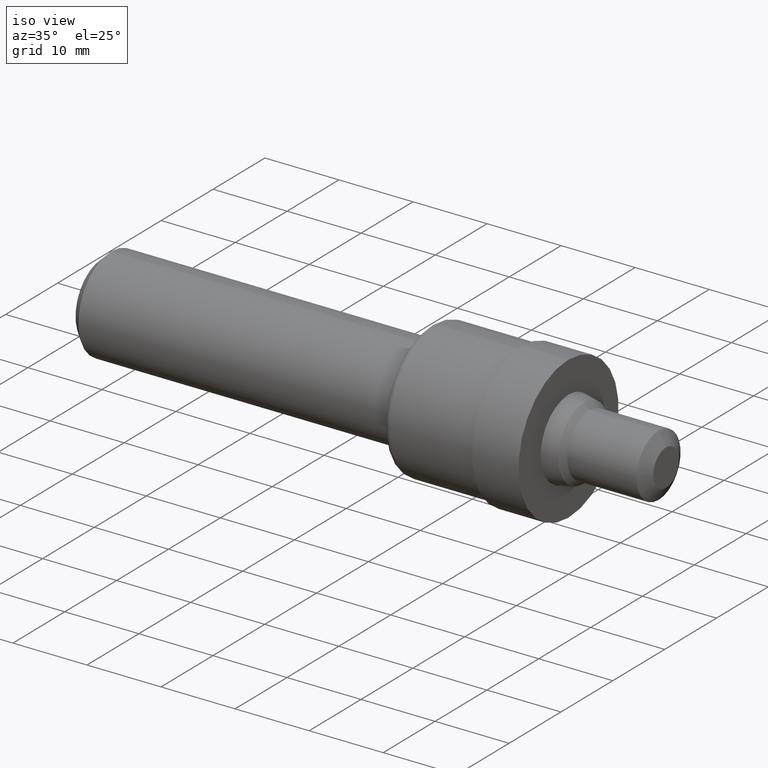
[diagram: clean part render]
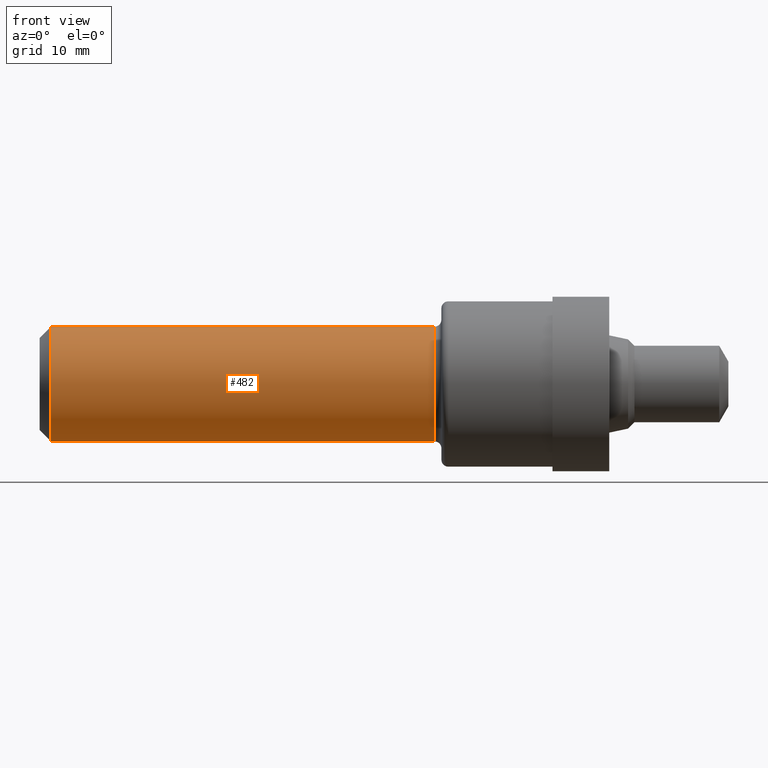
[diagram: tour spotlight — one face highlighted and labeled with its STEP entity id]
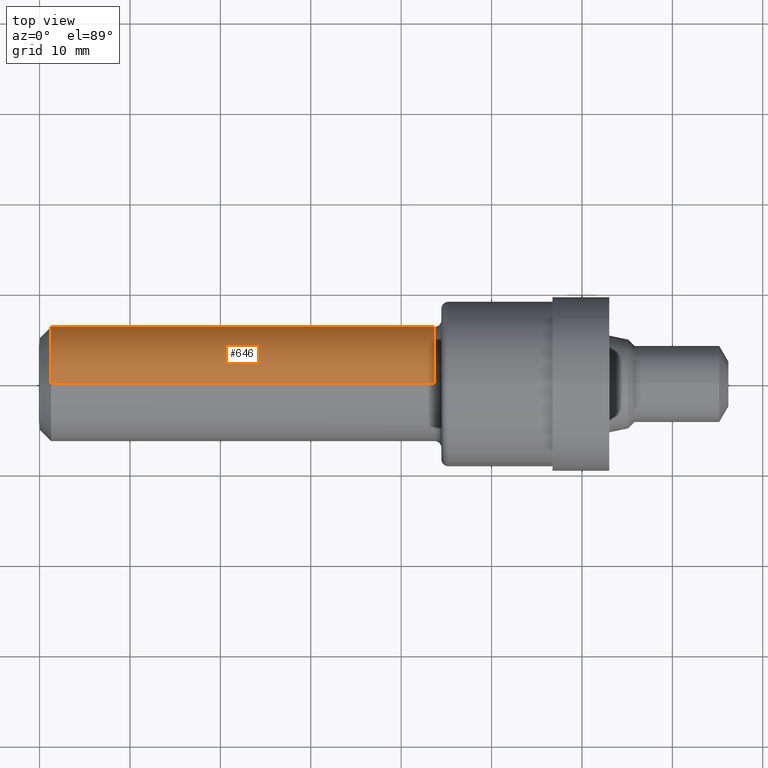
[diagram: tour spotlight — one face highlighted and labeled with its STEP entity id]
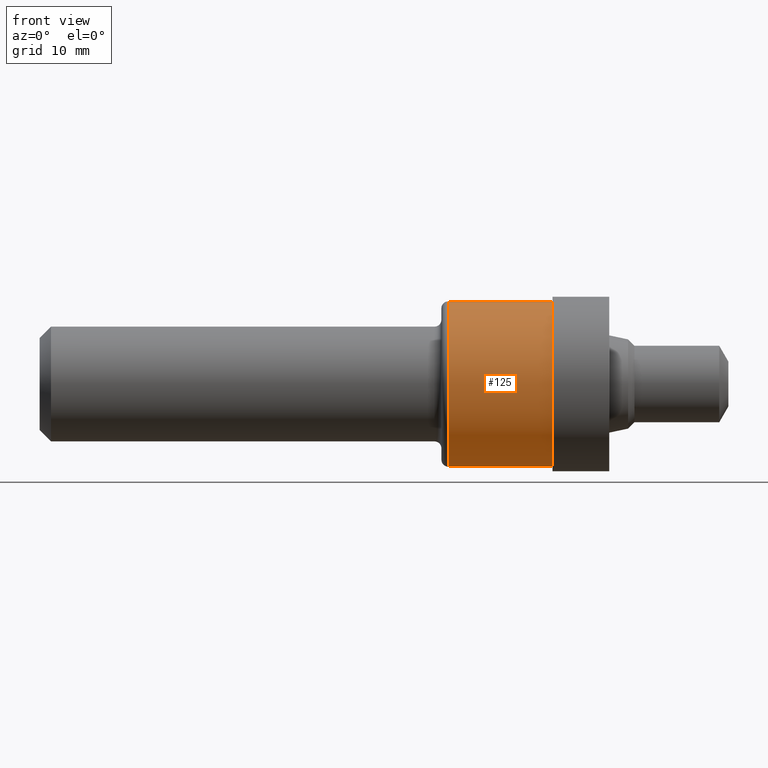
[diagram: tour spotlight — one face highlighted and labeled with its STEP entity id]
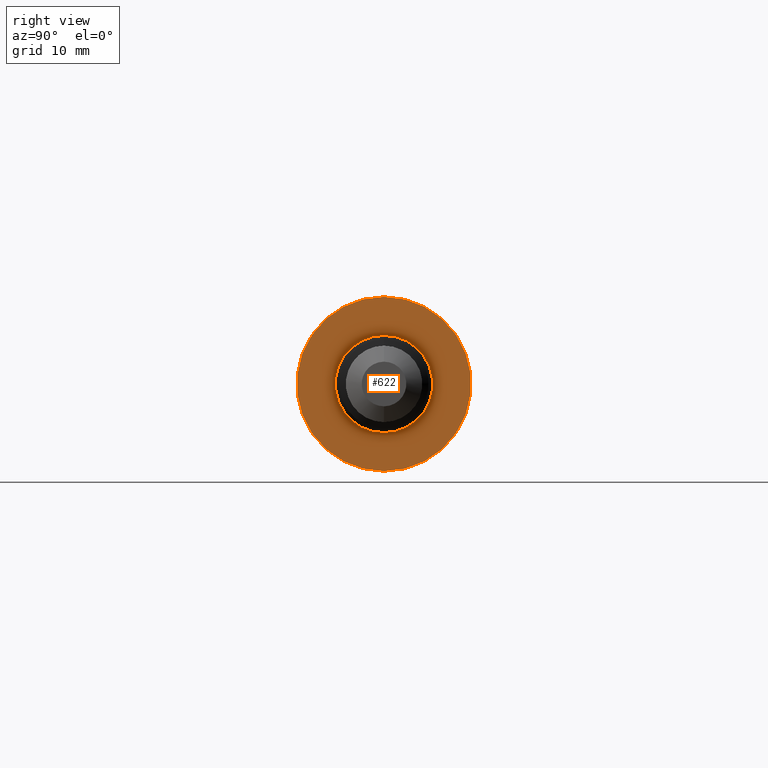
[diagram: tour spotlight — one face highlighted and labeled with its STEP entity id]
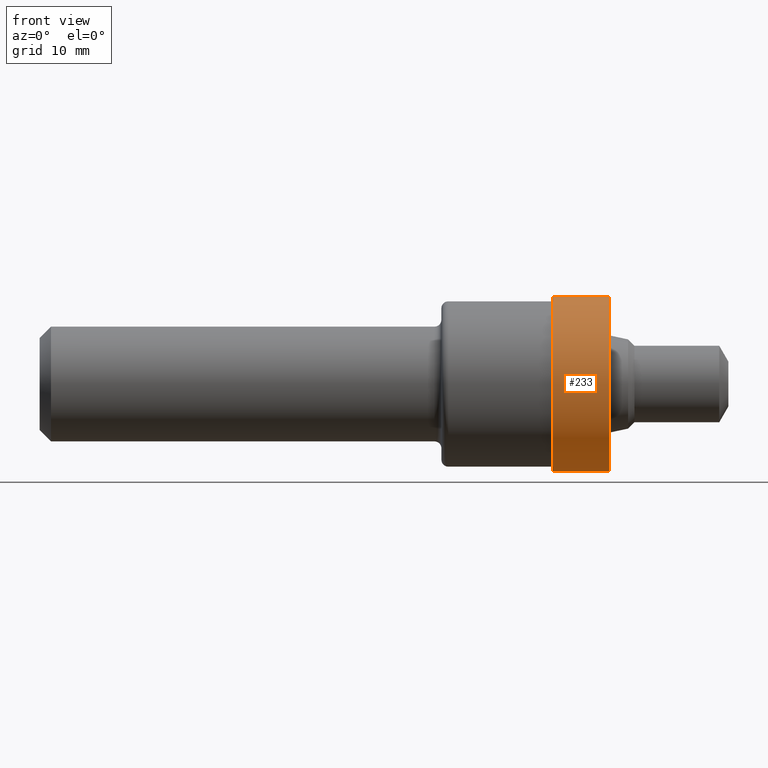
[diagram: tour spotlight — one face highlighted and labeled with its STEP entity id]
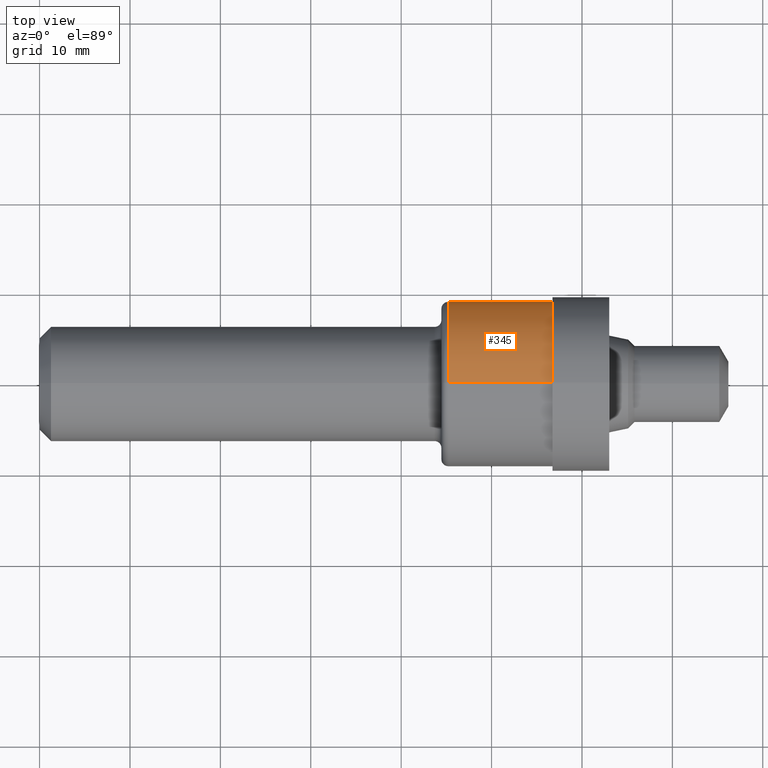
[diagram: tour spotlight — one face highlighted and labeled with its STEP entity id]
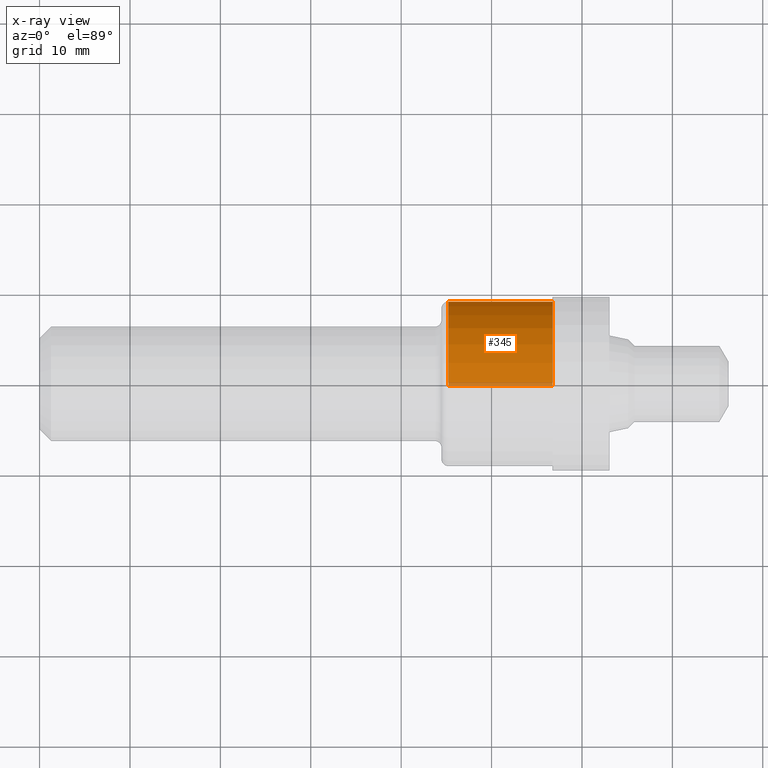
[diagram: x-ray of the same camera — body ghosted, this tour face saturated]
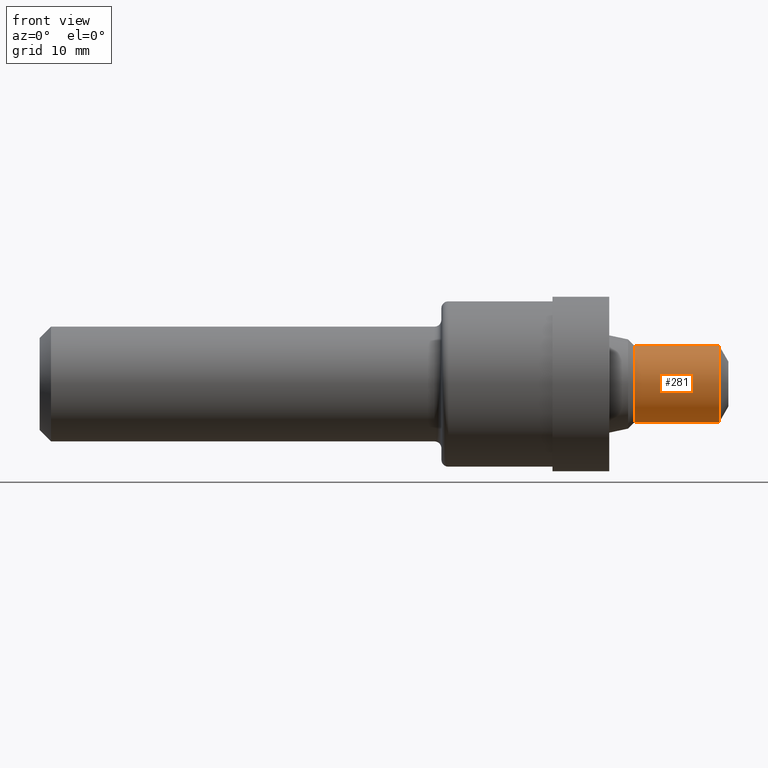
[diagram: tour spotlight — one face highlighted and labeled with its STEP entity id]
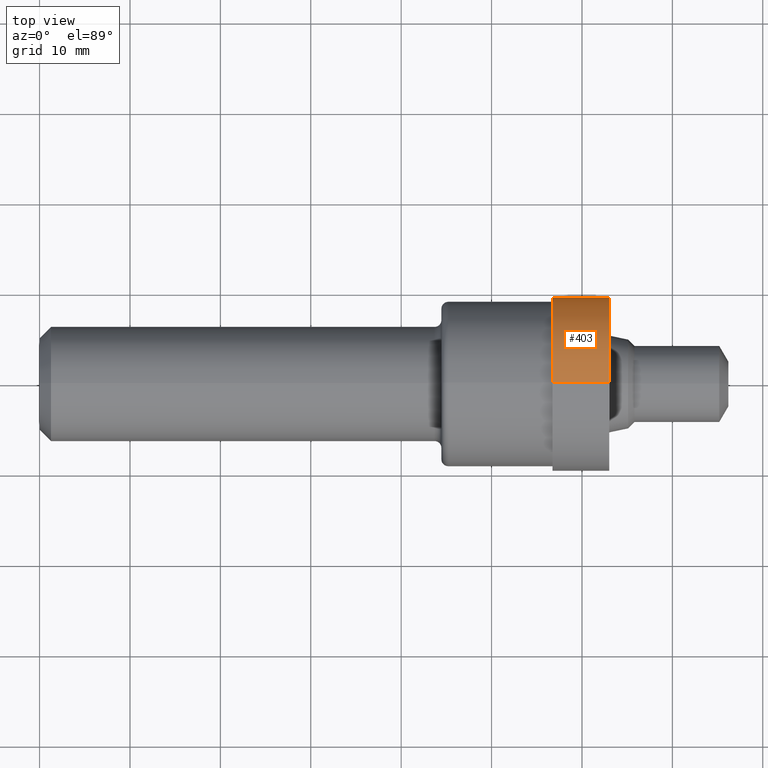
[diagram: tour spotlight — one face highlighted and labeled with its STEP entity id]
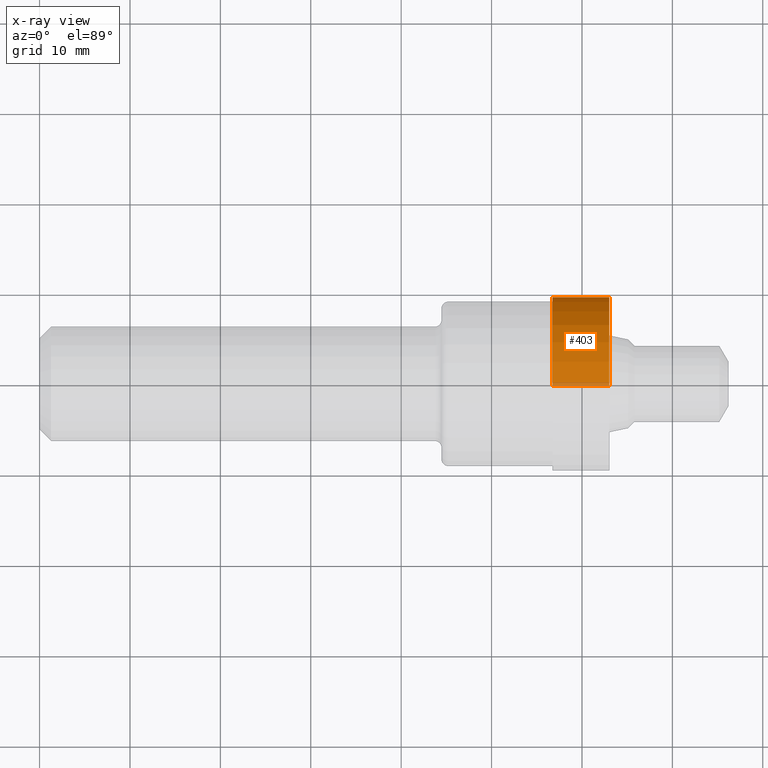
[diagram: x-ray of the same camera — body ghosted, this tour face saturated]
A machine part: a face-by-face anatomy tour. The part has 25 B-rep faces; the first image is the clean iso view, then the 8 largest visible faces are spotlighted one at a time (largest first), each with its STEP entity span.

Face 1 — front view, entity #482. In plain terms, the highlighted cylindrical surface (partial cylindrical patch) has radius 6.3462 mm, axis along (-1, -0, -0).
Definition (entity closure, byte-faithful):
#1 = VERTEX_POINT ( 'NONE', #440 ) ;
#9 = DIRECTION ( 'NONE',  ( -1.000000000000000000, -0.0000000000000000000, -0.0000000000000000000 ) ) ;
#41 = DIRECTION ( 'NONE',  ( 0.0000000000000000000, 0.0000000000000000000, 1.000000000000000000 ) ) ;
#43 = CARTESIAN_POINT ( 'NONE',  ( 1.720000000000000000, 0.0000000000000000000, 0.0000000000000000000 ) ) ;
#61 = VERTEX_POINT ( 'NONE', #509 ) ;
#70 = CARTESIAN_POINT ( 'NONE',  ( 0.05000000000000000300, 3.059780027669662500E-017, 0.2498500000000000400 ) ) ;
#71 = LINE ( 'NONE', #674, #315 ) ;
#83 = ORIENTED_EDGE ( 'NONE', *, *, #531, .T. ) ;
#85 = ORIENTED_EDGE ( 'NONE', *, *, #569, .F. ) ;
#97 = VECTOR ( 'NONE', #689, 39.37007874015748100 ) ;
#99 = DIRECTION ( 'NONE',  ( 0.0000000000000000000, 0.0000000000000000000, 1.000000000000000000 ) ) ;
#120 = ORIENTED_EDGE ( 'NONE', *, *, #373, .F. ) ;
#153 = CARTESIAN_POINT ( 'NONE',  ( 0.0000000000000000000, 0.0000000000000000000, 0.2498500000000002700 ) ) ;
#190 = DIRECTION ( 'NONE',  ( -1.000000000000000000, -0.0000000000000000000, -0.0000000000000000000 ) ) ;
#215 = DIRECTION ( 'NONE',  ( 0.0000000000000000000, 0.0000000000000000000, 1.000000000000000000 ) ) ;
#256 = ORIENTED_EDGE ( 'NONE', *, *, #469, .T. ) ;
#293 = CARTESIAN_POINT ( 'NONE',  ( 1.720000000000000000, 3.059780027669668100E-017, -0.2498500000000004900 ) ) ;
#315 = VECTOR ( 'NONE', #190, 39.37007874015748100 ) ;
#335 = AXIS2_PLACEMENT_3D ( 'NONE', #573, #684, #41 ) ;
#354 = VERTEX_POINT ( 'NONE', #293 ) ;
#358 = LINE ( 'NONE', #153, #97 ) ;
#373 = EDGE_CURVE ( 'NONE', #354, #1, #71, .T. ) ;
#417 = DIRECTION ( 'NONE',  ( -1.000000000000000000, -0.0000000000000000000, -0.0000000000000000000 ) ) ;
#431 = AXIS2_PLACEMENT_3D ( 'NONE', #43, #417, #99 ) ;
#440 = CARTESIAN_POINT ( 'NONE',  ( 0.05000000000000000300, 0.0000000000000000000, -0.2498500000000000400 ) ) ;
#469 = EDGE_CURVE ( 'NONE', #354, #61, #681, .T. ) ;
#482 = ADVANCED_FACE ( 'NONE', ( #537 ), #525, .T. ) ;
#483 = CIRCLE ( 'NONE', #630, 0.2498500000000000400 ) ;
#509 = CARTESIAN_POINT ( 'NONE',  ( 1.720000000000000000, 0.0000000000000000000, 0.2498500000000004900 ) ) ;
#525 = CYLINDRICAL_SURFACE ( 'NONE', #335, 0.2498500000000002700 ) ;
#531 = EDGE_CURVE ( 'NONE', #61, #581, #358, .T. ) ;
#537 = FACE_OUTER_BOUND ( 'NONE', #626, .T. ) ;
#549 = CARTESIAN_POINT ( 'NONE',  ( 0.05000000000000000300, 0.0000000000000000000, 0.0000000000000000000 ) ) ;
#569 = EDGE_CURVE ( 'NONE', #1, #581, #483, .T. ) ;
#573 = CARTESIAN_POINT ( 'NONE',  ( 0.0000000000000000000, 0.0000000000000000000, 0.0000000000000000000 ) ) ;
#581 = VERTEX_POINT ( 'NONE', #70 ) ;
#626 = EDGE_LOOP ( 'NONE', ( #120, #256, #83, #85 ) ) ;
#630 = AXIS2_PLACEMENT_3D ( 'NONE', #549, #9, #215 ) ;
#674 = CARTESIAN_POINT ( 'NONE',  ( 0.0000000000000000000, 3.059780027669665600E-017, -0.2498500000000002700 ) ) ;
#681 = CIRCLE ( 'NONE', #431, 0.2498500000000004900 ) ;
#684 = DIRECTION ( 'NONE',  ( -1.000000000000000000, -0.0000000000000000000, -0.0000000000000000000 ) ) ;
#689 = DIRECTION ( 'NONE',  ( -1.000000000000000000, -0.0000000000000000000, -0.0000000000000000000 ) ) ;

Face 2 — top view, entity #646. In plain terms, the highlighted cylindrical surface (partial cylindrical patch) has radius 6.3462 mm, axis along (-1, -0, -0).
Definition (entity closure, byte-faithful):
#1 = VERTEX_POINT ( 'NONE', #440 ) ;
#25 = DIRECTION ( 'NONE',  ( 0.0000000000000000000, 0.0000000000000000000, 1.000000000000000000 ) ) ;
#61 = VERTEX_POINT ( 'NONE', #509 ) ;
#70 = CARTESIAN_POINT ( 'NONE',  ( 0.05000000000000000300, 3.059780027669662500E-017, 0.2498500000000000400 ) ) ;
#71 = LINE ( 'NONE', #674, #315 ) ;
#97 = VECTOR ( 'NONE', #689, 39.37007874015748100 ) ;
#105 = ORIENTED_EDGE ( 'NONE', *, *, #531, .F. ) ;
#126 = CIRCLE ( 'NONE', #477, 0.2498500000000000400 ) ;
#148 = DIRECTION ( 'NONE',  ( -1.000000000000000000, -0.0000000000000000000, -0.0000000000000000000 ) ) ;
#149 = FACE_OUTER_BOUND ( 'NONE', #245, .T. ) ;
#153 = CARTESIAN_POINT ( 'NONE',  ( 0.0000000000000000000, 0.0000000000000000000, 0.2498500000000002700 ) ) ;
#188 = ORIENTED_EDGE ( 'NONE', *, *, #373, .T. ) ;
#190 = DIRECTION ( 'NONE',  ( -1.000000000000000000, -0.0000000000000000000, -0.0000000000000000000 ) ) ;
#241 = CIRCLE ( 'NONE', #272, 0.2498500000000004900 ) ;
#245 = EDGE_LOOP ( 'NONE', ( #446, #188, #523, #105 ) ) ;
#271 = DIRECTION ( 'NONE',  ( -1.000000000000000000, -0.0000000000000000000, -0.0000000000000000000 ) ) ;
#272 = AXIS2_PLACEMENT_3D ( 'NONE', #671, #344, #25 ) ;
#293 = CARTESIAN_POINT ( 'NONE',  ( 1.720000000000000000, 3.059780027669668100E-017, -0.2498500000000004900 ) ) ;
#306 = EDGE_CURVE ( 'NONE', #61, #354, #241, .T. ) ;
#315 = VECTOR ( 'NONE', #190, 39.37007874015748100 ) ;
#344 = DIRECTION ( 'NONE',  ( -1.000000000000000000, -0.0000000000000000000, -0.0000000000000000000 ) ) ;
#354 = VERTEX_POINT ( 'NONE', #293 ) ;
#358 = LINE ( 'NONE', #153, #97 ) ;
#373 = EDGE_CURVE ( 'NONE', #354, #1, #71, .T. ) ;
#380 = CARTESIAN_POINT ( 'NONE',  ( 0.0000000000000000000, 0.0000000000000000000, 0.0000000000000000000 ) ) ;
#406 = CYLINDRICAL_SURFACE ( 'NONE', #512, 0.2498500000000002700 ) ;
#440 = CARTESIAN_POINT ( 'NONE',  ( 0.05000000000000000300, 0.0000000000000000000, -0.2498500000000000400 ) ) ;
#446 = ORIENTED_EDGE ( 'NONE', *, *, #306, .T. ) ;
#458 = EDGE_CURVE ( 'NONE', #581, #1, #126, .T. ) ;
#470 = CARTESIAN_POINT ( 'NONE',  ( 0.05000000000000000300, 0.0000000000000000000, 0.0000000000000000000 ) ) ;
#477 = AXIS2_PLACEMENT_3D ( 'NONE', #470, #148, #526 ) ;
#509 = CARTESIAN_POINT ( 'NONE',  ( 1.720000000000000000, 0.0000000000000000000, 0.2498500000000004900 ) ) ;
#512 = AXIS2_PLACEMENT_3D ( 'NONE', #380, #271, #597 ) ;
#523 = ORIENTED_EDGE ( 'NONE', *, *, #458, .F. ) ;
#526 = DIRECTION ( 'NONE',  ( 0.0000000000000000000, 0.0000000000000000000, 1.000000000000000000 ) ) ;
#531 = EDGE_CURVE ( 'NONE', #61, #581, #358, .T. ) ;
#581 = VERTEX_POINT ( 'NONE', #70 ) ;
#597 = DIRECTION ( 'NONE',  ( 0.0000000000000000000, 0.0000000000000000000, 1.000000000000000000 ) ) ;
#646 = ADVANCED_FACE ( 'NONE', ( #149 ), #406, .T. ) ;
#671 = CARTESIAN_POINT ( 'NONE',  ( 1.720000000000000000, 0.0000000000000000000, 0.0000000000000000000 ) ) ;
#674 = CARTESIAN_POINT ( 'NONE',  ( 0.0000000000000000000, 3.059780027669665600E-017, -0.2498500000000002700 ) ) ;
#689 = DIRECTION ( 'NONE',  ( -1.000000000000000000, -0.0000000000000000000, -0.0000000000000000000 ) ) ;

Face 3 — front view, entity #125. In plain terms, the highlighted cylindrical surface (partial cylindrical patch) has radius 9.144 mm, axis along (-1, -0, -0).
Definition (entity closure, byte-faithful):
#2 = EDGE_LOOP ( 'NONE', ( #675, #311, #480, #378 ) ) ;
#17 = DIRECTION ( 'NONE',  ( -1.000000000000000000, -0.0000000000000000000, -0.0000000000000000000 ) ) ;
#24 = EDGE_CURVE ( 'NONE', #384, #535, #683, .T. ) ;
#54 = EDGE_CURVE ( 'NONE', #384, #317, #249, .T. ) ;
#95 = EDGE_CURVE ( 'NONE', #317, #322, #644, .T. ) ;
#125 = ADVANCED_FACE ( 'NONE', ( #540 ), #632, .T. ) ;
#127 = DIRECTION ( 'NONE',  ( 0.0000000000000000000, 0.0000000000000000000, 1.000000000000000000 ) ) ;
#217 = CARTESIAN_POINT ( 'NONE',  ( 0.0000000000000000000, 4.408728476930471600E-017, -0.3599999999999999900 ) ) ;
#226 = CARTESIAN_POINT ( 'NONE',  ( 1.779999999999999800, 0.0000000000000000000, 0.0000000000000000000 ) ) ;
#234 = AXIS2_PLACEMENT_3D ( 'NONE', #395, #17, #127 ) ;
#240 = CARTESIAN_POINT ( 'NONE',  ( 2.234000000000000400, 4.408728476930471600E-017, -0.3599999999999999900 ) ) ;
#249 = LINE ( 'NONE', #217, #527 ) ;
#257 = EDGE_CURVE ( 'NONE', #535, #322, #454, .T. ) ;
#268 = DIRECTION ( 'NONE',  ( 0.0000000000000000000, 0.0000000000000000000, 1.000000000000000000 ) ) ;
#311 = ORIENTED_EDGE ( 'NONE', *, *, #24, .T. ) ;
#317 = VERTEX_POINT ( 'NONE', #615 ) ;
#322 = VERTEX_POINT ( 'NONE', #402 ) ;
#331 = DIRECTION ( 'NONE',  ( 0.0000000000000000000, 0.0000000000000000000, 1.000000000000000000 ) ) ;
#378 = ORIENTED_EDGE ( 'NONE', *, *, #95, .F. ) ;
#384 = VERTEX_POINT ( 'NONE', #240 ) ;
#395 = CARTESIAN_POINT ( 'NONE',  ( 2.234000000000000400, 0.0000000000000000000, 0.0000000000000000000 ) ) ;
#402 = CARTESIAN_POINT ( 'NONE',  ( 1.779999999999999800, 0.0000000000000000000, 0.3599999999999999300 ) ) ;
#420 = AXIS2_PLACEMENT_3D ( 'NONE', #226, #493, #268 ) ;
#454 = LINE ( 'NONE', #606, #578 ) ;
#480 = ORIENTED_EDGE ( 'NONE', *, *, #257, .T. ) ;
#493 = DIRECTION ( 'NONE',  ( -1.000000000000000000, -0.0000000000000000000, -0.0000000000000000000 ) ) ;
#500 = DIRECTION ( 'NONE',  ( -1.000000000000000000, -0.0000000000000000000, -0.0000000000000000000 ) ) ;
#527 = VECTOR ( 'NONE', #598, 39.37007874015748100 ) ;
#535 = VERTEX_POINT ( 'NONE', #580 ) ;
#540 = FACE_OUTER_BOUND ( 'NONE', #2, .T. ) ;
#550 = CARTESIAN_POINT ( 'NONE',  ( 0.0000000000000000000, 0.0000000000000000000, 0.0000000000000000000 ) ) ;
#578 = VECTOR ( 'NONE', #500, 39.37007874015748100 ) ;
#580 = CARTESIAN_POINT ( 'NONE',  ( 2.234000000000000400, 0.0000000000000000000, 0.3599999999999999900 ) ) ;
#582 = AXIS2_PLACEMENT_3D ( 'NONE', #550, #659, #331 ) ;
#598 = DIRECTION ( 'NONE',  ( -1.000000000000000000, -0.0000000000000000000, -0.0000000000000000000 ) ) ;
#606 = CARTESIAN_POINT ( 'NONE',  ( 0.0000000000000000000, 0.0000000000000000000, 0.3599999999999999900 ) ) ;
#615 = CARTESIAN_POINT ( 'NONE',  ( 1.779999999999999800, 4.408728476930471000E-017, -0.3599999999999999300 ) ) ;
#632 = CYLINDRICAL_SURFACE ( 'NONE', #582, 0.3599999999999999900 ) ;
#644 = CIRCLE ( 'NONE', #420, 0.3599999999999999300 ) ;
#659 = DIRECTION ( 'NONE',  ( -1.000000000000000000, -0.0000000000000000000, -0.0000000000000000000 ) ) ;
#675 = ORIENTED_EDGE ( 'NONE', *, *, #54, .F. ) ;
#683 = CIRCLE ( 'NONE', #234, 0.3599999999999999900 ) ;

Face 4 — right view, entity #622. In plain terms, the highlighted planar face has unit normal (-1, 0, -0).
Definition (entity closure, byte-faithful):
#3 = EDGE_LOOP ( 'NONE', ( #428, #34 ) ) ;
#27 = FACE_BOUND ( 'NONE', #3, .T. ) ;
#34 = ORIENTED_EDGE ( 'NONE', *, *, #316, .T. ) ;
#48 = AXIS2_PLACEMENT_3D ( 'NONE', #235, #619, #290 ) ;
#52 = CIRCLE ( 'NONE', #253, 0.3799999999999999500 ) ;
#72 = DIRECTION ( 'NONE',  ( -1.000000000000000000, -0.0000000000000000000, -0.0000000000000000000 ) ) ;
#134 = CARTESIAN_POINT ( 'NONE',  ( 2.481000000000000300, 0.0000000000000000000, 0.2117499999999999900 ) ) ;
#136 = PLANE ( 'NONE',  #399 ) ;
#166 = DIRECTION ( 'NONE',  ( -0.0000000000000000000, 0.0000000000000000000, 1.000000000000000000 ) ) ;
#175 = ORIENTED_EDGE ( 'NONE', *, *, #246, .F. ) ;
#186 = EDGE_LOOP ( 'NONE', ( #541, #175 ) ) ;
#201 = VERTEX_POINT ( 'NONE', #134 ) ;
#235 = CARTESIAN_POINT ( 'NONE',  ( 2.481000000000000300, 0.0000000000000000000, 0.0000000000000000000 ) ) ;
#237 = CARTESIAN_POINT ( 'NONE',  ( 2.481000000000000300, 0.0000000000000000000, 0.0000000000000000000 ) ) ;
#244 = CARTESIAN_POINT ( 'NONE',  ( 2.481000000000000300, 0.0000000000000000000, 0.3799999999999999500 ) ) ;
#246 = EDGE_CURVE ( 'NONE', #351, #401, #320, .T. ) ;
#253 = AXIS2_PLACEMENT_3D ( 'NONE', #237, #624, #295 ) ;
#261 = CIRCLE ( 'NONE', #298, 0.2117499999999999900 ) ;
#273 = DIRECTION ( 'NONE',  ( -1.000000000000000000, 0.0000000000000000000, -0.0000000000000000000 ) ) ;
#290 = DIRECTION ( 'NONE',  ( 0.0000000000000000000, 0.0000000000000000000, 1.000000000000000000 ) ) ;
#295 = DIRECTION ( 'NONE',  ( 0.0000000000000000000, 0.0000000000000000000, 1.000000000000000000 ) ) ;
#298 = AXIS2_PLACEMENT_3D ( 'NONE', #302, #687, #362 ) ;
#302 = CARTESIAN_POINT ( 'NONE',  ( 2.481000000000000300, 0.0000000000000000000, 0.0000000000000000000 ) ) ;
#316 = EDGE_CURVE ( 'NONE', #640, #201, #520, .T. ) ;
#320 = CIRCLE ( 'NONE', #623, 0.3799999999999999500 ) ;
#330 = CARTESIAN_POINT ( 'NONE',  ( 2.481000000000000300, 0.3799999999999999500, 0.0000000000000000000 ) ) ;
#351 = VERTEX_POINT ( 'NONE', #461 ) ;
#353 = EDGE_CURVE ( 'NONE', #401, #351, #52, .T. ) ;
#362 = DIRECTION ( 'NONE',  ( 0.0000000000000000000, 0.0000000000000000000, 1.000000000000000000 ) ) ;
#387 = DIRECTION ( 'NONE',  ( 0.0000000000000000000, 0.0000000000000000000, 1.000000000000000000 ) ) ;
#399 = AXIS2_PLACEMENT_3D ( 'NONE', #330, #273, #166 ) ;
#401 = VERTEX_POINT ( 'NONE', #244 ) ;
#428 = ORIENTED_EDGE ( 'NONE', *, *, #490, .T. ) ;
#442 = CARTESIAN_POINT ( 'NONE',  ( 2.481000000000000300, 0.0000000000000000000, 0.0000000000000000000 ) ) ;
#451 = FACE_OUTER_BOUND ( 'NONE', #186, .T. ) ;
#461 = CARTESIAN_POINT ( 'NONE',  ( 2.481000000000000300, 4.653657836759941700E-017, -0.3799999999999999500 ) ) ;
#490 = EDGE_CURVE ( 'NONE', #201, #640, #261, .T. ) ;
#520 = CIRCLE ( 'NONE', #48, 0.2117499999999999900 ) ;
#541 = ORIENTED_EDGE ( 'NONE', *, *, #353, .F. ) ;
#619 = DIRECTION ( 'NONE',  ( -1.000000000000000000, -0.0000000000000000000, -0.0000000000000000000 ) ) ;
#622 = ADVANCED_FACE ( 'NONE', ( #451, #27 ), #136, .F. ) ;
#623 = AXIS2_PLACEMENT_3D ( 'NONE', #442, #72, #387 ) ;
#624 = DIRECTION ( 'NONE',  ( -1.000000000000000000, -0.0000000000000000000, -0.0000000000000000000 ) ) ;
#640 = VERTEX_POINT ( 'NONE', #652 ) ;
#652 = CARTESIAN_POINT ( 'NONE',  ( 2.481000000000000300, 2.593189597194520500E-017, -0.2117499999999999900 ) ) ;
#687 = DIRECTION ( 'NONE',  ( -1.000000000000000000, -0.0000000000000000000, -0.0000000000000000000 ) ) ;

Face 5 — front view, entity #233. In plain terms, the highlighted cylindrical surface (partial cylindrical patch) has radius 9.652 mm, axis along (-1, -0, -0).
Definition (entity closure, byte-faithful):
#11 = CARTESIAN_POINT ( 'NONE',  ( 0.0000000000000000000, 0.0000000000000000000, 0.0000000000000000000 ) ) ;
#44 = VECTOR ( 'NONE', #62, 39.37007874015748100 ) ;
#53 = VERTEX_POINT ( 'NONE', #177 ) ;
#62 = DIRECTION ( 'NONE',  ( -1.000000000000000000, -0.0000000000000000000, -0.0000000000000000000 ) ) ;
#65 = AXIS2_PLACEMENT_3D ( 'NONE', #11, #80, #430 ) ;
#72 = DIRECTION ( 'NONE',  ( -1.000000000000000000, -0.0000000000000000000, -0.0000000000000000000 ) ) ;
#80 = DIRECTION ( 'NONE',  ( -1.000000000000000000, -0.0000000000000000000, -0.0000000000000000000 ) ) ;
#96 = CARTESIAN_POINT ( 'NONE',  ( 0.0000000000000000000, 4.653657836759941700E-017, -0.3799999999999999500 ) ) ;
#98 = CIRCLE ( 'NONE', #489, 0.3799999999999999500 ) ;
#111 = EDGE_CURVE ( 'NONE', #460, #53, #98, .T. ) ;
#115 = EDGE_LOOP ( 'NONE', ( #435, #260, #590, #468 ) ) ;
#161 = CYLINDRICAL_SURFACE ( 'NONE', #65, 0.3799999999999999500 ) ;
#177 = CARTESIAN_POINT ( 'NONE',  ( 2.234000000000000400, 0.0000000000000000000, 0.3799999999999999500 ) ) ;
#233 = ADVANCED_FACE ( 'NONE', ( #343 ), #161, .T. ) ;
#244 = CARTESIAN_POINT ( 'NONE',  ( 2.481000000000000300, 0.0000000000000000000, 0.3799999999999999500 ) ) ;
#246 = EDGE_CURVE ( 'NONE', #351, #401, #320, .T. ) ;
#250 = DIRECTION ( 'NONE',  ( -1.000000000000000000, -0.0000000000000000000, -0.0000000000000000000 ) ) ;
#260 = ORIENTED_EDGE ( 'NONE', *, *, #246, .T. ) ;
#320 = CIRCLE ( 'NONE', #623, 0.3799999999999999500 ) ;
#343 = FACE_OUTER_BOUND ( 'NONE', #115, .T. ) ;
#351 = VERTEX_POINT ( 'NONE', #461 ) ;
#387 = DIRECTION ( 'NONE',  ( 0.0000000000000000000, 0.0000000000000000000, 1.000000000000000000 ) ) ;
#393 = VECTOR ( 'NONE', #250, 39.37007874015748100 ) ;
#401 = VERTEX_POINT ( 'NONE', #244 ) ;
#413 = LINE ( 'NONE', #96, #393 ) ;
#416 = CARTESIAN_POINT ( 'NONE',  ( 2.234000000000000400, 4.653657836759941700E-017, -0.3799999999999999500 ) ) ;
#430 = DIRECTION ( 'NONE',  ( 0.0000000000000000000, 0.0000000000000000000, 1.000000000000000000 ) ) ;
#434 = DIRECTION ( 'NONE',  ( -1.000000000000000000, -0.0000000000000000000, -0.0000000000000000000 ) ) ;
#435 = ORIENTED_EDGE ( 'NONE', *, *, #465, .F. ) ;
#442 = CARTESIAN_POINT ( 'NONE',  ( 2.481000000000000300, 0.0000000000000000000, 0.0000000000000000000 ) ) ;
#460 = VERTEX_POINT ( 'NONE', #416 ) ;
#461 = CARTESIAN_POINT ( 'NONE',  ( 2.481000000000000300, 4.653657836759941700E-017, -0.3799999999999999500 ) ) ;
#465 = EDGE_CURVE ( 'NONE', #351, #460, #413, .T. ) ;
#468 = ORIENTED_EDGE ( 'NONE', *, *, #111, .F. ) ;
#471 = LINE ( 'NONE', #558, #44 ) ;
#489 = AXIS2_PLACEMENT_3D ( 'NONE', #601, #434, #496 ) ;
#496 = DIRECTION ( 'NONE',  ( 0.0000000000000000000, 0.0000000000000000000, 1.000000000000000000 ) ) ;
#558 = CARTESIAN_POINT ( 'NONE',  ( 0.0000000000000000000, 0.0000000000000000000, 0.3799999999999999500 ) ) ;
#590 = ORIENTED_EDGE ( 'NONE', *, *, #605, .T. ) ;
#601 = CARTESIAN_POINT ( 'NONE',  ( 2.234000000000000400, 0.0000000000000000000, 0.0000000000000000000 ) ) ;
#605 = EDGE_CURVE ( 'NONE', #401, #53, #471, .T. ) ;
#623 = AXIS2_PLACEMENT_3D ( 'NONE', #442, #72, #387 ) ;

Face 6 — top view, entity #345. An x-ray twin of the same camera follows (body ghosted, this face saturated) — the face is partly hidden behind the body. In plain terms, the highlighted cylindrical surface (partial cylindrical patch) has radius 9.144 mm, axis along (-1, -0, -0).
Definition (entity closure, byte-faithful):
#54 = EDGE_CURVE ( 'NONE', #384, #317, #249, .T. ) ;
#78 = DIRECTION ( 'NONE',  ( 0.0000000000000000000, 0.0000000000000000000, 1.000000000000000000 ) ) ;
#140 = DIRECTION ( 'NONE',  ( -1.000000000000000000, -0.0000000000000000000, -0.0000000000000000000 ) ) ;
#203 = EDGE_LOOP ( 'NONE', ( #259, #368, #650, #359 ) ) ;
#217 = CARTESIAN_POINT ( 'NONE',  ( 0.0000000000000000000, 4.408728476930471600E-017, -0.3599999999999999900 ) ) ;
#240 = CARTESIAN_POINT ( 'NONE',  ( 2.234000000000000400, 4.408728476930471600E-017, -0.3599999999999999900 ) ) ;
#249 = LINE ( 'NONE', #217, #527 ) ;
#254 = CIRCLE ( 'NONE', #542, 0.3599999999999999900 ) ;
#257 = EDGE_CURVE ( 'NONE', #535, #322, #454, .T. ) ;
#259 = ORIENTED_EDGE ( 'NONE', *, *, #682, .T. ) ;
#282 = CARTESIAN_POINT ( 'NONE',  ( 2.234000000000000400, 0.0000000000000000000, 0.0000000000000000000 ) ) ;
#289 = CARTESIAN_POINT ( 'NONE',  ( 1.779999999999999800, 0.0000000000000000000, 0.0000000000000000000 ) ) ;
#292 = AXIS2_PLACEMENT_3D ( 'NONE', #563, #140, #457 ) ;
#317 = VERTEX_POINT ( 'NONE', #615 ) ;
#322 = VERTEX_POINT ( 'NONE', #402 ) ;
#333 = CYLINDRICAL_SURFACE ( 'NONE', #292, 0.3599999999999999900 ) ;
#342 = DIRECTION ( 'NONE',  ( 0.0000000000000000000, 0.0000000000000000000, 1.000000000000000000 ) ) ;
#345 = ADVANCED_FACE ( 'NONE', ( #637 ), #333, .T. ) ;
#359 = ORIENTED_EDGE ( 'NONE', *, *, #257, .F. ) ;
#368 = ORIENTED_EDGE ( 'NONE', *, *, #54, .T. ) ;
#384 = VERTEX_POINT ( 'NONE', #240 ) ;
#402 = CARTESIAN_POINT ( 'NONE',  ( 1.779999999999999800, 0.0000000000000000000, 0.3599999999999999300 ) ) ;
#454 = LINE ( 'NONE', #606, #578 ) ;
#457 = DIRECTION ( 'NONE',  ( 0.0000000000000000000, 0.0000000000000000000, 1.000000000000000000 ) ) ;
#500 = DIRECTION ( 'NONE',  ( -1.000000000000000000, -0.0000000000000000000, -0.0000000000000000000 ) ) ;
#527 = VECTOR ( 'NONE', #598, 39.37007874015748100 ) ;
#535 = VERTEX_POINT ( 'NONE', #580 ) ;
#542 = AXIS2_PLACEMENT_3D ( 'NONE', #282, #667, #78 ) ;
#544 = CIRCLE ( 'NONE', #575, 0.3599999999999999300 ) ;
#563 = CARTESIAN_POINT ( 'NONE',  ( 0.0000000000000000000, 0.0000000000000000000, 0.0000000000000000000 ) ) ;
#575 = AXIS2_PLACEMENT_3D ( 'NONE', #289, #670, #342 ) ;
#578 = VECTOR ( 'NONE', #500, 39.37007874015748100 ) ;
#580 = CARTESIAN_POINT ( 'NONE',  ( 2.234000000000000400, 0.0000000000000000000, 0.3599999999999999900 ) ) ;
#598 = DIRECTION ( 'NONE',  ( -1.000000000000000000, -0.0000000000000000000, -0.0000000000000000000 ) ) ;
#606 = CARTESIAN_POINT ( 'NONE',  ( 0.0000000000000000000, 0.0000000000000000000, 0.3599999999999999900 ) ) ;
#615 = CARTESIAN_POINT ( 'NONE',  ( 1.779999999999999800, 4.408728476930471000E-017, -0.3599999999999999300 ) ) ;
#637 = FACE_OUTER_BOUND ( 'NONE', #203, .T. ) ;
#650 = ORIENTED_EDGE ( 'NONE', *, *, #686, .F. ) ;
#667 = DIRECTION ( 'NONE',  ( -1.000000000000000000, -0.0000000000000000000, -0.0000000000000000000 ) ) ;
#670 = DIRECTION ( 'NONE',  ( -1.000000000000000000, -0.0000000000000000000, -0.0000000000000000000 ) ) ;
#682 = EDGE_CURVE ( 'NONE', #535, #384, #254, .T. ) ;
#686 = EDGE_CURVE ( 'NONE', #322, #317, #544, .T. ) ;

Face 7 — front view, entity #281. In plain terms, the highlighted cylindrical surface (partial cylindrical patch) has radius 4.2291 mm, axis along (-1, -0, -0).
Definition (entity closure, byte-faithful):
#4 = ORIENTED_EDGE ( 'NONE', *, *, #609, .T. ) ;
#5 = ORIENTED_EDGE ( 'NONE', *, *, #504, .F. ) ;
#15 = DIRECTION ( 'NONE',  ( -1.000000000000000000, -0.0000000000000000000, -0.0000000000000000000 ) ) ;
#26 = EDGE_CURVE ( 'NONE', #600, #108, #129, .T. ) ;
#42 = AXIS2_PLACEMENT_3D ( 'NONE', #603, #224, #391 ) ;
#63 = CARTESIAN_POINT ( 'NONE',  ( 2.590820361943058100, 2.209387506603778400E-017, -0.1665000000000000100 ) ) ;
#68 = ORIENTED_EDGE ( 'NONE', *, *, #26, .T. ) ;
#75 = CARTESIAN_POINT ( 'NONE',  ( 0.0000000000000000000, 0.0000000000000000000, 0.0000000000000000000 ) ) ;
#76 = CARTESIAN_POINT ( 'NONE',  ( 0.0000000000000000000, 0.0000000000000000000, 0.1665000000000000100 ) ) ;
#93 = DIRECTION ( 'NONE',  ( -1.000000000000000000, -0.0000000000000000000, -0.0000000000000000000 ) ) ;
#108 = VERTEX_POINT ( 'NONE', #555 ) ;
#129 = LINE ( 'NONE', #76, #396 ) ;
#223 = VERTEX_POINT ( 'NONE', #63 ) ;
#224 = DIRECTION ( 'NONE',  ( -1.000000000000000000, -0.0000000000000000000, -0.0000000000000000000 ) ) ;
#239 = AXIS2_PLACEMENT_3D ( 'NONE', #75, #15, #337 ) ;
#252 = DIRECTION ( 'NONE',  ( -1.000000000000000000, -0.0000000000000000000, -0.0000000000000000000 ) ) ;
#281 = ADVANCED_FACE ( 'NONE', ( #502 ), #654, .T. ) ;
#287 = DIRECTION ( 'NONE',  ( -1.000000000000000000, -0.0000000000000000000, -0.0000000000000000000 ) ) ;
#319 = CIRCLE ( 'NONE', #42, 0.1665000000000000100 ) ;
#327 = CARTESIAN_POINT ( 'NONE',  ( 2.960000000000000000, 0.0000000000000000000, 0.1665000000000000100 ) ) ;
#337 = DIRECTION ( 'NONE',  ( 0.0000000000000000000, 0.0000000000000000000, 1.000000000000000000 ) ) ;
#350 = EDGE_LOOP ( 'NONE', ( #566, #4, #68, #5 ) ) ;
#365 = VERTEX_POINT ( 'NONE', #565 ) ;
#391 = DIRECTION ( 'NONE',  ( 0.0000000000000000000, 0.0000000000000000000, 1.000000000000000000 ) ) ;
#396 = VECTOR ( 'NONE', #287, 39.37007874015748100 ) ;
#414 = AXIS2_PLACEMENT_3D ( 'NONE', #577, #252, #633 ) ;
#426 = EDGE_CURVE ( 'NONE', #365, #223, #693, .T. ) ;
#466 = CARTESIAN_POINT ( 'NONE',  ( 0.0000000000000000000, 2.039036920580343200E-017, -0.1665000000000000100 ) ) ;
#502 = FACE_OUTER_BOUND ( 'NONE', #350, .T. ) ;
#504 = EDGE_CURVE ( 'NONE', #223, #108, #664, .T. ) ;
#553 = VECTOR ( 'NONE', #93, 39.37007874015748100 ) ;
#555 = CARTESIAN_POINT ( 'NONE',  ( 2.590820361943058100, 0.0000000000000000000, 0.1665000000000000100 ) ) ;
#565 = CARTESIAN_POINT ( 'NONE',  ( 2.960000000000000000, 2.039036920580343200E-017, -0.1665000000000000100 ) ) ;
#566 = ORIENTED_EDGE ( 'NONE', *, *, #426, .F. ) ;
#577 = CARTESIAN_POINT ( 'NONE',  ( 2.590820361943058100, 0.0000000000000000000, 0.0000000000000000000 ) ) ;
#600 = VERTEX_POINT ( 'NONE', #327 ) ;
#603 = CARTESIAN_POINT ( 'NONE',  ( 2.960000000000000000, 0.0000000000000000000, 0.0000000000000000000 ) ) ;
#609 = EDGE_CURVE ( 'NONE', #365, #600, #319, .T. ) ;
#633 = DIRECTION ( 'NONE',  ( 0.0000000000000000000, 0.0000000000000000000, 1.000000000000000000 ) ) ;
#654 = CYLINDRICAL_SURFACE ( 'NONE', #239, 0.1665000000000000100 ) ;
#664 = CIRCLE ( 'NONE', #414, 0.1665000000000000100 ) ;
#693 = LINE ( 'NONE', #466, #553 ) ;

Face 8 — top view, entity #403. An x-ray twin of the same camera follows (body ghosted, this face saturated) — the face is partly hidden behind the body. In plain terms, the highlighted cylindrical surface (partial cylindrical patch) has radius 9.652 mm, axis along (-1, -0, -0).
Definition (entity closure, byte-faithful):
#36 = DIRECTION ( 'NONE',  ( 0.0000000000000000000, 0.0000000000000000000, 1.000000000000000000 ) ) ;
#38 = DIRECTION ( 'NONE',  ( -1.000000000000000000, -0.0000000000000000000, -0.0000000000000000000 ) ) ;
#44 = VECTOR ( 'NONE', #62, 39.37007874015748100 ) ;
#52 = CIRCLE ( 'NONE', #253, 0.3799999999999999500 ) ;
#53 = VERTEX_POINT ( 'NONE', #177 ) ;
#62 = DIRECTION ( 'NONE',  ( -1.000000000000000000, -0.0000000000000000000, -0.0000000000000000000 ) ) ;
#96 = CARTESIAN_POINT ( 'NONE',  ( 0.0000000000000000000, 4.653657836759941700E-017, -0.3799999999999999500 ) ) ;
#118 = CARTESIAN_POINT ( 'NONE',  ( 2.234000000000000400, 0.0000000000000000000, 0.0000000000000000000 ) ) ;
#135 = ORIENTED_EDGE ( 'NONE', *, *, #536, .F. ) ;
#177 = CARTESIAN_POINT ( 'NONE',  ( 2.234000000000000400, 0.0000000000000000000, 0.3799999999999999500 ) ) ;
#193 = ORIENTED_EDGE ( 'NONE', *, *, #353, .T. ) ;
#232 = DIRECTION ( 'NONE',  ( 0.0000000000000000000, 0.0000000000000000000, 1.000000000000000000 ) ) ;
#237 = CARTESIAN_POINT ( 'NONE',  ( 2.481000000000000300, 0.0000000000000000000, 0.0000000000000000000 ) ) ;
#244 = CARTESIAN_POINT ( 'NONE',  ( 2.481000000000000300, 0.0000000000000000000, 0.3799999999999999500 ) ) ;
#250 = DIRECTION ( 'NONE',  ( -1.000000000000000000, -0.0000000000000000000, -0.0000000000000000000 ) ) ;
#253 = AXIS2_PLACEMENT_3D ( 'NONE', #237, #624, #295 ) ;
#283 = CYLINDRICAL_SURFACE ( 'NONE', #515, 0.3799999999999999500 ) ;
#295 = DIRECTION ( 'NONE',  ( 0.0000000000000000000, 0.0000000000000000000, 1.000000000000000000 ) ) ;
#301 = ORIENTED_EDGE ( 'NONE', *, *, #605, .F. ) ;
#310 = ORIENTED_EDGE ( 'NONE', *, *, #465, .T. ) ;
#351 = VERTEX_POINT ( 'NONE', #461 ) ;
#353 = EDGE_CURVE ( 'NONE', #401, #351, #52, .T. ) ;
#393 = VECTOR ( 'NONE', #250, 39.37007874015748100 ) ;
#401 = VERTEX_POINT ( 'NONE', #244 ) ;
#403 = ADVANCED_FACE ( 'NONE', ( #570 ), #283, .T. ) ;
#413 = LINE ( 'NONE', #96, #393 ) ;
#416 = CARTESIAN_POINT ( 'NONE',  ( 2.234000000000000400, 4.653657836759941700E-017, -0.3799999999999999500 ) ) ;
#448 = DIRECTION ( 'NONE',  ( -1.000000000000000000, -0.0000000000000000000, -0.0000000000000000000 ) ) ;
#460 = VERTEX_POINT ( 'NONE', #416 ) ;
#461 = CARTESIAN_POINT ( 'NONE',  ( 2.481000000000000300, 4.653657836759941700E-017, -0.3799999999999999500 ) ) ;
#465 = EDGE_CURVE ( 'NONE', #351, #460, #413, .T. ) ;
#471 = LINE ( 'NONE', #558, #44 ) ;
#481 = AXIS2_PLACEMENT_3D ( 'NONE', #118, #448, #232 ) ;
#506 = CIRCLE ( 'NONE', #481, 0.3799999999999999500 ) ;
#515 = AXIS2_PLACEMENT_3D ( 'NONE', #627, #38, #36 ) ;
#536 = EDGE_CURVE ( 'NONE', #53, #460, #506, .T. ) ;
#558 = CARTESIAN_POINT ( 'NONE',  ( 0.0000000000000000000, 0.0000000000000000000, 0.3799999999999999500 ) ) ;
#570 = FACE_OUTER_BOUND ( 'NONE', #660, .T. ) ;
#605 = EDGE_CURVE ( 'NONE', #401, #53, #471, .T. ) ;
#624 = DIRECTION ( 'NONE',  ( -1.000000000000000000, -0.0000000000000000000, -0.0000000000000000000 ) ) ;
#627 = CARTESIAN_POINT ( 'NONE',  ( 0.0000000000000000000, 0.0000000000000000000, 0.0000000000000000000 ) ) ;
#660 = EDGE_LOOP ( 'NONE', ( #193, #310, #135, #301 ) ) ;